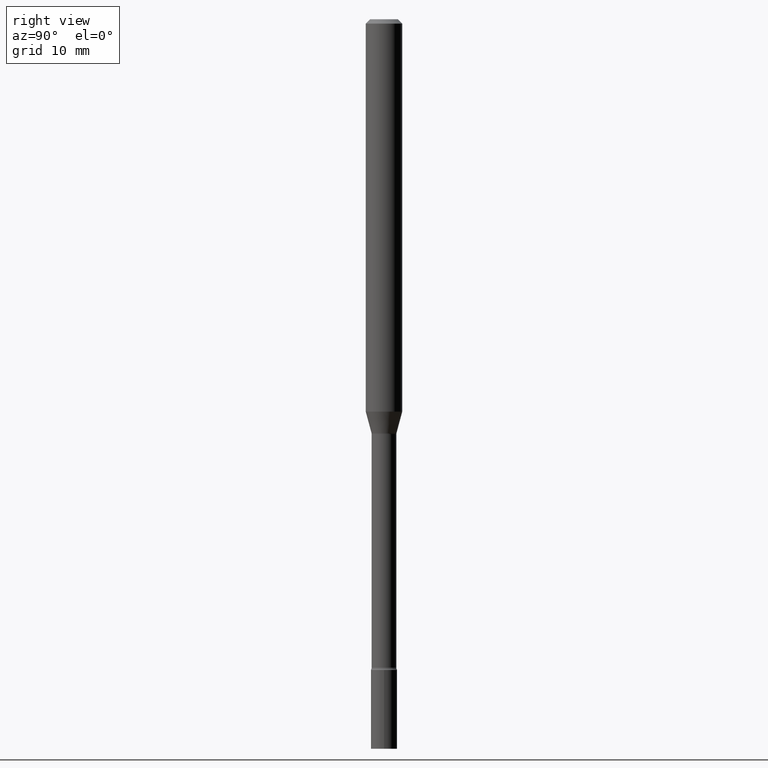
[diagram: clean part render]
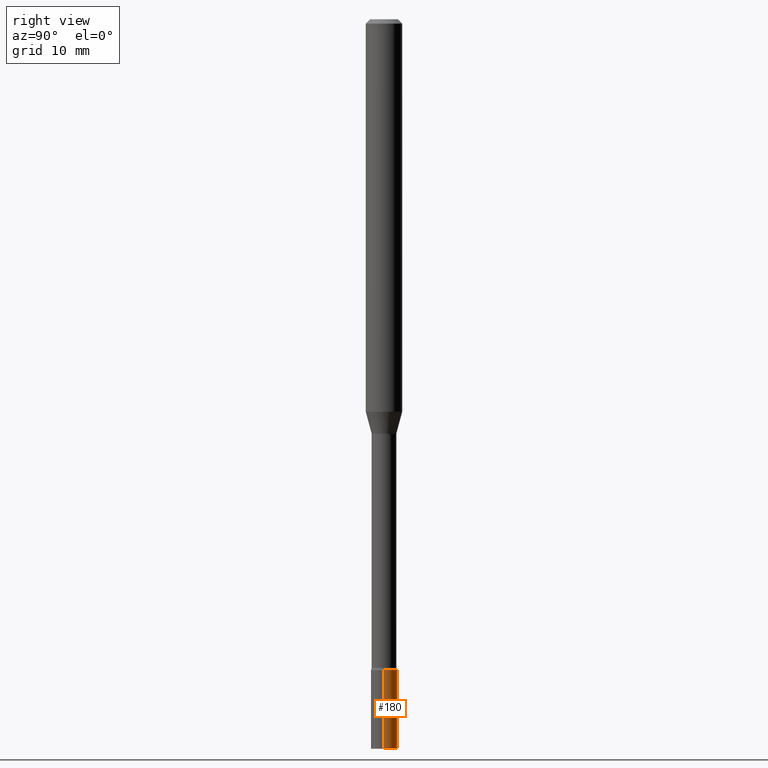
[diagram: same view with one face highlighted and labeled with its STEP entity id]
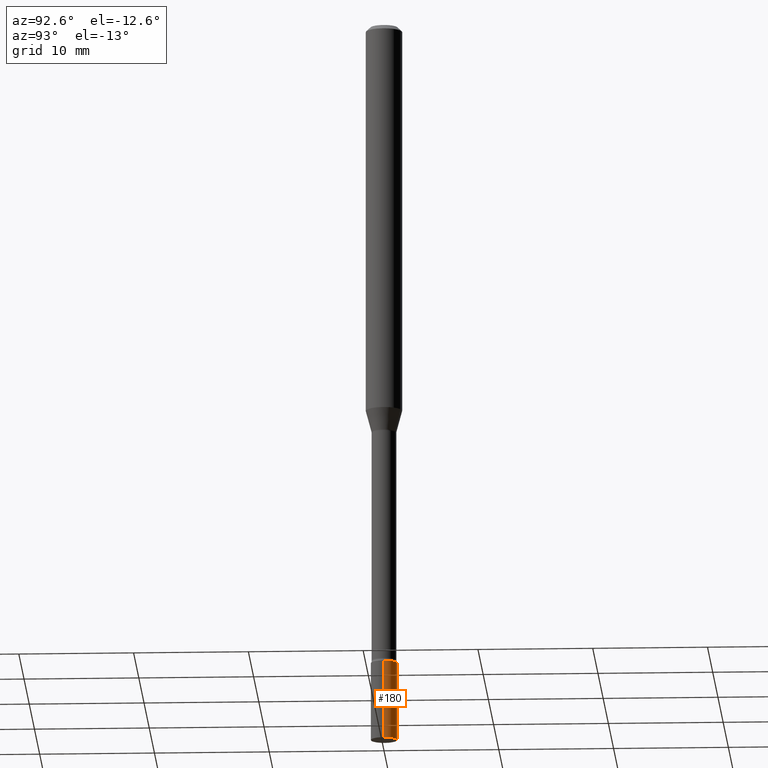
[diagram: same view with one face highlighted and labeled with its STEP entity id]
A machine part, right view. The second image highlights one B-rep face of the part: STEP entity #180.
A second angle (auxiliary view) of the same face is appended — the face is thin or edge-on in the first view.
In plain terms, the highlighted cylindrical surface (edge-blend (fillet) strip) has radius 1.143 mm, axis along (-0, 0, 1).
Its self-contained STEP definition (entity closure, byte-faithful):
#2 = CARTESIAN_POINT ( 'NONE',  ( 0.04499999999999999833, -3.142333204958819823E-16, 2.194279549108170967E-30 ) ) ;
#18 = CARTESIAN_POINT ( 'NONE',  ( -0.04499999999999999833, -7.937609135271993890E-15, -2.500000000000000000 ) ) ;
#27 = EDGE_CURVE ( 'NONE', #88, #299, #133, .T. ) ;
#30 = CYLINDRICAL_SURFACE ( 'NONE', #304, 0.04499999999999999833 ) ;
#38 = AXIS2_PLACEMENT_3D ( 'NONE', #347, #313, #93 ) ;
#46 = EDGE_CURVE ( 'NONE', #478, #472, #356, .T. ) ;
#51 = CARTESIAN_POINT ( 'NONE',  ( -0.04499999999999999833, 3.197442310920450718E-16, -2.213520790614707560E-30 ) ) ;
#55 = DIRECTION ( 'NONE',  ( -2.445468806185136877E-29, 3.491481338843145188E-15, 1.000000000000000000 ) ) ;
#76 = ORIENTED_EDGE ( 'NONE', *, *, #355, .F. ) ;
#88 = VERTEX_POINT ( 'NONE', #18 ) ;
#93 = DIRECTION ( 'NONE',  ( 1.000000000000000000, -6.982962677686246989E-15, 0.000000000000000000 ) ) ;
#108 = EDGE_LOOP ( 'NONE', ( #300, #479, #76, #244 ) ) ;
#109 = CARTESIAN_POINT ( 'NONE',  ( 0.000000000000000000, 0.000000000000000000, 0.000000000000000000 ) ) ;
#128 = CARTESIAN_POINT ( 'NONE',  ( 0.04499999999999999833, -9.042936667603745051E-15, -2.500000000000000000 ) ) ;
#133 = LINE ( 'NONE', #51, #407 ) ;
#146 = DIRECTION ( 'NONE',  ( 1.000000000000000000, -6.982962677686266711E-15, 4.876176775795935793E-29 ) ) ;
#167 = DIRECTION ( 'NONE',  ( -2.445468806185136877E-29, 3.491481338843145188E-15, 1.000000000000000000 ) ) ;
#180 = ADVANCED_FACE ( 'NONE', ( #376 ), #30, .T. ) ;
#200 = DIRECTION ( 'NONE',  ( -2.445468806185136597E-29, 3.491481338843145583E-15, 1.000000000000000000 ) ) ;
#244 = ORIENTED_EDGE ( 'NONE', *, *, #46, .F. ) ;
#299 = VERTEX_POINT ( 'NONE', #394 ) ;
#300 = ORIENTED_EDGE ( 'NONE', *, *, #469, .T. ) ;
#304 = AXIS2_PLACEMENT_3D ( 'NONE', #109, #338, #146 ) ;
#313 = DIRECTION ( 'NONE',  ( -2.445468806185136597E-29, 3.491481338843145583E-15, 1.000000000000000000 ) ) ;
#316 = DIRECTION ( 'NONE',  ( 1.000000000000000000, -6.982962677686269077E-15, 0.000000000000000000 ) ) ;
#338 = DIRECTION ( 'NONE',  ( -2.445468806185136597E-29, 3.491481338843145583E-15, 1.000000000000000000 ) ) ;
#342 = CIRCLE ( 'NONE', #358, 0.04499999999999999833 ) ;
#347 = CARTESIAN_POINT ( 'NONE',  ( 6.113672015462842613E-29, -8.728703347107864943E-15, -2.500000000000000000 ) ) ;
#349 = CARTESIAN_POINT ( 'NONE',  ( 5.453395437792854252E-29, -7.786003385620215150E-15, -2.229999999999999982 ) ) ;
#355 = EDGE_CURVE ( 'NONE', #472, #299, #342, .T. ) ;
#356 = LINE ( 'NONE', #2, #418 ) ;
#358 = AXIS2_PLACEMENT_3D ( 'NONE', #349, #200, #316 ) ;
#359 = CARTESIAN_POINT ( 'NONE',  ( 0.04499999999999999833, -8.100236706116096837E-15, -2.229999999999999982 ) ) ;
#376 = FACE_OUTER_BOUND ( 'NONE', #108, .T. ) ;
#394 = CARTESIAN_POINT ( 'NONE',  ( -0.04499999999999999833, -7.937609135271993890E-15, -2.229999999999999982 ) ) ;
#398 = CIRCLE ( 'NONE', #38, 0.04499999999999999833 ) ;
#407 = VECTOR ( 'NONE', #55, 39.37007874015748143 ) ;
#418 = VECTOR ( 'NONE', #167, 39.37007874015748143 ) ;
#469 = EDGE_CURVE ( 'NONE', #478, #88, #398, .T. ) ;
#472 = VERTEX_POINT ( 'NONE', #359 ) ;
#478 = VERTEX_POINT ( 'NONE', #128 ) ;
#479 = ORIENTED_EDGE ( 'NONE', *, *, #27, .T. ) ;